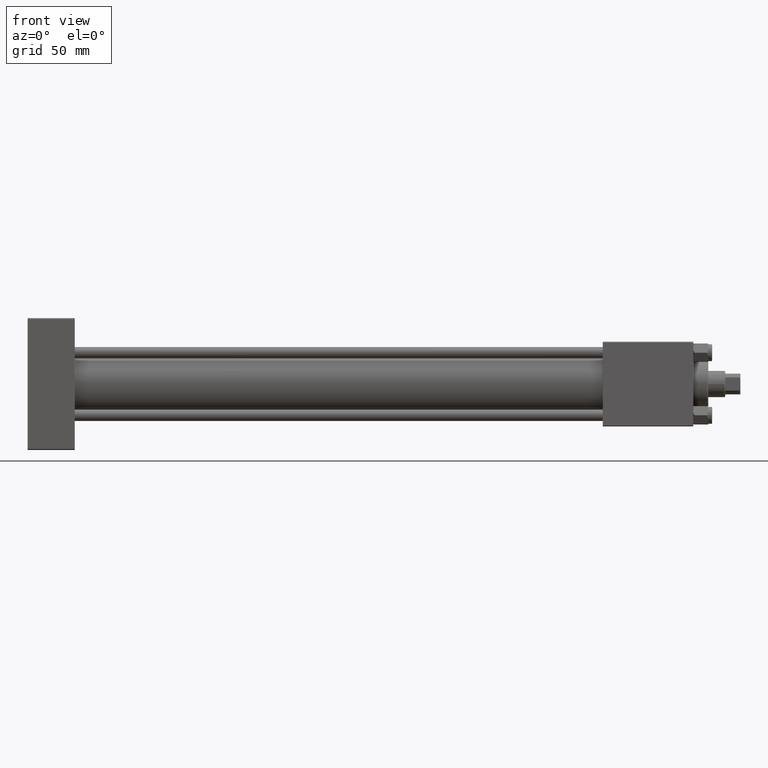
[diagram: clean part render]
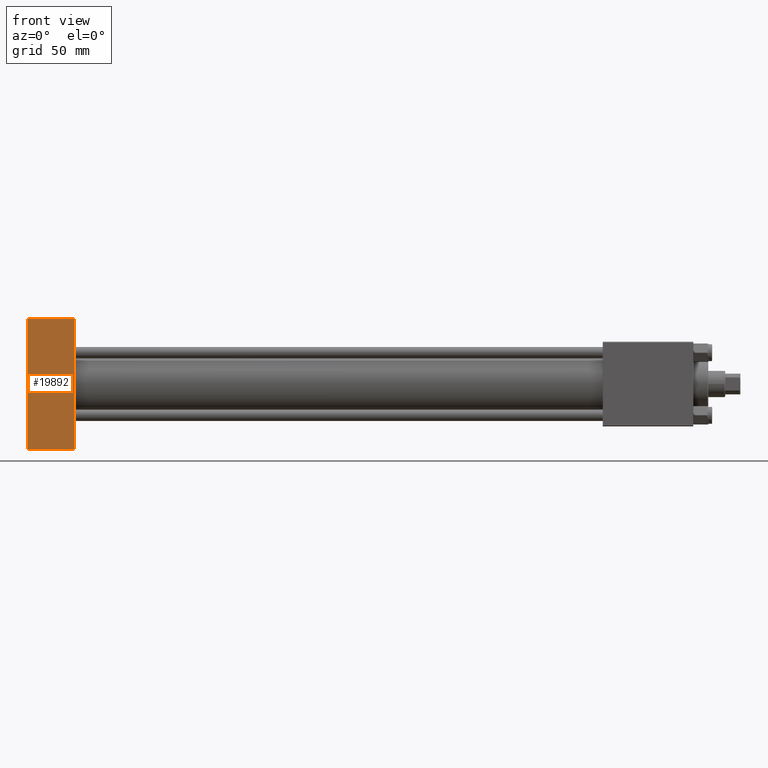
[diagram: same view with one face highlighted and labeled with its STEP entity id]
A machine part, front view. The second image highlights one B-rep face of the part: STEP entity #19892.
In plain terms, the highlighted planar face has unit normal (0, 1, 0).
Its self-contained STEP definition (entity closure, byte-faithful):
#3396 = VECTOR ( 'NONE', #33753, 1000.000000000000000 ) ;
#6718 = CARTESIAN_POINT ( 'NONE',  ( 25.00000000000000000, -22.49999999999999645, 35.00000000000000000 ) ) ;
#8071 = VERTEX_POINT ( 'NONE', #20114 ) ;
#8226 = ORIENTED_EDGE ( 'NONE', *, *, #24462, .F. ) ;
#9797 = CARTESIAN_POINT ( 'NONE',  ( 25.00000000000000000, -22.49999999999999645, 34.50000000000000000 ) ) ;
#10569 = PLANE ( 'NONE',  #19030 ) ;
#11086 = CARTESIAN_POINT ( 'NONE',  ( 25.00000000000000000, -22.49999999999999645, 35.00000000000000000 ) ) ;
#12808 = LINE ( 'NONE', #28340, #28298 ) ;
#17671 = EDGE_CURVE ( 'NONE', #32302, #30128, #12808, .T. ) ;
#19030 = AXIS2_PLACEMENT_3D ( 'NONE', #11086, #28075, #42643 ) ;
#19892 = ADVANCED_FACE ( 'NONE', ( #46578 ), #10569, .F. ) ;
#19981 = DIRECTION ( 'NONE',  ( 1.000000000000000000, 0.000000000000000000, 0.000000000000000000 ) ) ;
#20114 = CARTESIAN_POINT ( 'NONE',  ( 25.00000000000000000, -22.49999999999999645, -34.50000000000000000 ) ) ;
#21676 = VECTOR ( 'NONE', #22774, 1000.000000000000000 ) ;
#22774 = DIRECTION ( 'NONE',  ( 0.000000000000000000, 0.000000000000000000, -1.000000000000000000 ) ) ;
#23879 = DIRECTION ( 'NONE',  ( 0.000000000000000000, 0.000000000000000000, -1.000000000000000000 ) ) ;
#24462 = EDGE_CURVE ( 'NONE', #45218, #8071, #42732, .T. ) ;
#28075 = DIRECTION ( 'NONE',  ( -0.000000000000000000, 1.000000000000000000, 0.000000000000000000 ) ) ;
#28298 = VECTOR ( 'NONE', #23879, 1000.000000000000000 ) ;
#28340 = CARTESIAN_POINT ( 'NONE',  ( 0.000000000000000000, -22.49999999999999645, 35.00000000000000000 ) ) ;
#30128 = VERTEX_POINT ( 'NONE', #50221 ) ;
#30391 = EDGE_CURVE ( 'NONE', #30128, #8071, #32069, .T. ) ;
#32069 = LINE ( 'NONE', #36263, #35338 ) ;
#32302 = VERTEX_POINT ( 'NONE', #37429 ) ;
#33753 = DIRECTION ( 'NONE',  ( -1.000000000000000000, 0.000000000000000000, 0.000000000000000000 ) ) ;
#34002 = ORIENTED_EDGE ( 'NONE', *, *, #17671, .T. ) ;
#35338 = VECTOR ( 'NONE', #19981, 1000.000000000000000 ) ;
#36263 = CARTESIAN_POINT ( 'NONE',  ( 25.00000000000000000, -22.49999999999999645, -34.50000000000000000 ) ) ;
#37429 = CARTESIAN_POINT ( 'NONE',  ( 0.000000000000000000, -22.49999999999999645, 34.50000000000000000 ) ) ;
#38195 = ORIENTED_EDGE ( 'NONE', *, *, #38808, .T. ) ;
#38808 = EDGE_CURVE ( 'NONE', #45218, #32302, #44764, .T. ) ;
#42643 = DIRECTION ( 'NONE',  ( 0.000000000000000000, -0.000000000000000000, 1.000000000000000000 ) ) ;
#42708 = ORIENTED_EDGE ( 'NONE', *, *, #30391, .T. ) ;
#42732 = LINE ( 'NONE', #6718, #21676 ) ;
#44764 = LINE ( 'NONE', #9797, #3396 ) ;
#45218 = VERTEX_POINT ( 'NONE', #50838 ) ;
#46578 = FACE_OUTER_BOUND ( 'NONE', #51158, .T. ) ;
#50221 = CARTESIAN_POINT ( 'NONE',  ( 0.000000000000000000, -22.49999999999999645, -34.50000000000000000 ) ) ;
#50838 = CARTESIAN_POINT ( 'NONE',  ( 25.00000000000000000, -22.49999999999999645, 34.50000000000000000 ) ) ;
#51158 = EDGE_LOOP ( 'NONE', ( #34002, #42708, #8226, #38195 ) ) ;